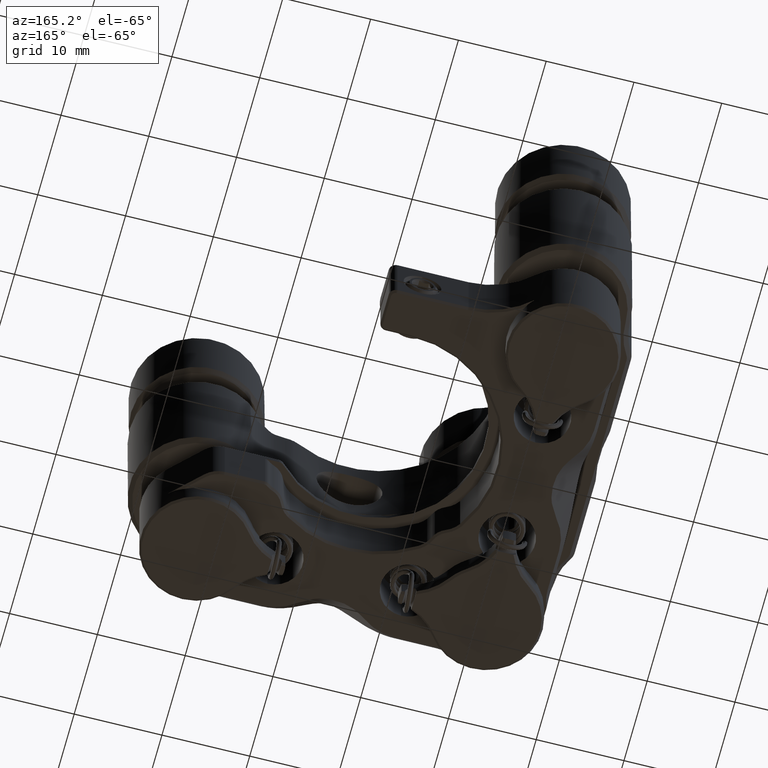
[diagram: clean part render]
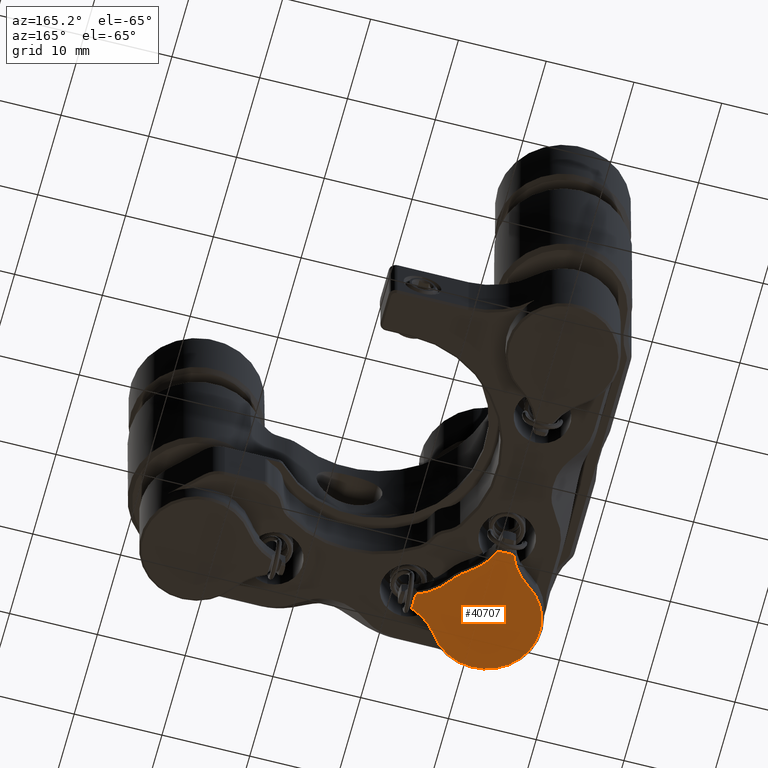
[diagram: same view with one face highlighted and labeled with its STEP entity id]
A machine part, auxiliary view. The second image highlights one B-rep face of the part: STEP entity #40707.
In plain terms, the highlighted planar face has unit normal (0, 0, -1).
Its self-contained STEP definition (entity closure, byte-faithful):
#552 = AXIS2_PLACEMENT_3D ( 'NONE', #8954, #37768, #13175 ) ;
#764 = VECTOR ( 'NONE', #37390, 1000.000000000000000 ) ;
#1606 = LINE ( 'NONE', #6130, #8469 ) ;
#2354 = VECTOR ( 'NONE', #12944, 1000.000000000000000 ) ;
#3702 = AXIS2_PLACEMENT_3D ( 'NONE', #10151, #24070, #10465 ) ;
#3902 = ORIENTED_EDGE ( 'NONE', *, *, #4543, .T. ) ;
#4543 = EDGE_CURVE ( 'NONE', #33838, #26601, #46786, .T. ) ;
#4590 = CARTESIAN_POINT ( 'NONE',  ( 16.06115914459125449, 22.72973785281512349, 12.97670909684711660 ) ) ;
#4619 = FACE_OUTER_BOUND ( 'NONE', #17947, .T. ) ;
#6130 = CARTESIAN_POINT ( 'NONE',  ( 17.15425173361347788, 24.04186663779271882, 12.97670909685329654 ) ) ;
#7084 = CIRCLE ( 'NONE', #52574, 6.731000000031926334 ) ;
#7771 = CARTESIAN_POINT ( 'NONE',  ( 46.59922866646579109, 20.40719739724860915, 12.97670909685329654 ) ) ;
#8469 = VECTOR ( 'NONE', #35903, 1000.000000000000000 ) ;
#8862 = VECTOR ( 'NONE', #31486, 1000.000000000000000 ) ;
#8954 = CARTESIAN_POINT ( 'NONE',  ( 8.861151733613258585, 12.11409739724832768, 12.97670909690396002 ) ) ;
#9783 = DIRECTION ( 'NONE',  ( 0.000000000000000000, 1.000000000000000000, 2.775557561562890118E-17 ) ) ;
#10044 = VERTEX_POINT ( 'NONE', #58494 ) ;
#10151 = CARTESIAN_POINT ( 'NONE',  ( 1.661144322635577764, 22.72973785281526915, 12.97670909665951200 ) ) ;
#10465 = DIRECTION ( 'NONE',  ( -3.543670746474352749E-15, 1.000000000000000000, 2.577215088344983916E-16 ) ) ;
#12395 = ORIENTED_EDGE ( 'NONE', *, *, #41783, .T. ) ;
#12944 = DIRECTION ( 'NONE',  ( 1.000000000000000000, -1.702056126997398298E-37, 6.132303471447325083E-21 ) ) ;
#13175 = DIRECTION ( 'NONE',  ( 1.000000000000000000, 0.000000000000000000, 0.000000000000000000 ) ) ;
#14642 = ORIENTED_EDGE ( 'NONE', *, *, #33657, .T. ) ;
#14760 = CARTESIAN_POINT ( 'NONE',  ( 8.861151733613265691, 12.11409739724927626, 12.97670909684711660 ) ) ;
#15012 = CIRCLE ( 'NONE', #552, 6.096000000102788086 ) ;
#15595 = EDGE_CURVE ( 'NONE', #44009, #56830, #16700, .T. ) ;
#15836 = DIRECTION ( 'NONE',  ( -2.656815044701648862E-30, -2.577215088376234641E-16, 1.000000000000000000 ) ) ;
#16700 = CIRCLE ( 'NONE', #48762, 6.096000000046894129 ) ;
#17947 = EDGE_LOOP ( 'NONE', ( #12395, #28659, #18664, #26276, #18446, #40909, #3902, #40189, #14642, #47257 ) ) ;
#18446 = ORIENTED_EDGE ( 'NONE', *, *, #61353, .F. ) ;
#18664 = ORIENTED_EDGE ( 'NONE', *, *, #51000, .T. ) ;
#18723 = CARTESIAN_POINT ( 'NONE',  ( 9.743551461935815894, 20.40719739724861626, 12.97670909684214635 ) ) ;
#20553 = CARTESIAN_POINT ( 'NONE',  ( 13.90620858373394242, 8.692311696991126269, 12.97670909681869489 ) ) ;
#20981 = AXIS2_PLACEMENT_3D ( 'NONE', #4590, #43734, #54398 ) ;
#21555 = EDGE_CURVE ( 'NONE', #21809, #57746, #7084, .T. ) ;
#21809 = VERTEX_POINT ( 'NONE', #36135 ) ;
#22112 = VERTEX_POINT ( 'NONE', #38509 ) ;
#24070 = DIRECTION ( 'NONE',  ( -2.656815044785316190E-30, -2.577215088416814632E-16, 1.000000000000000000 ) ) ;
#24348 = DIRECTION ( 'NONE',  ( 6.132303471447325083E-21, 2.775557561562890118E-17, -1.000000000000000000 ) ) ;
#26276 = ORIENTED_EDGE ( 'NONE', *, *, #21555, .T. ) ;
#26425 = CARTESIAN_POINT ( 'NONE',  ( 19.47679218917987143, 4.914089986270612442, 12.97670909679027318 ) ) ;
#26601 = VERTEX_POINT ( 'NONE', #58220 ) ;
#27509 = CARTESIAN_POINT ( 'NONE',  ( 7.978752005314903251, 20.40719739724860560, 12.97670909670583939 ) ) ;
#28659 = ORIENTED_EDGE ( 'NONE', *, *, #63785, .T. ) ;
#29326 = DIRECTION ( 'NONE',  ( 1.000000000000000000, 6.260484985432443497E-15, 0.000000000000000000 ) ) ;
#30656 = VERTEX_POINT ( 'NONE', #18723 ) ;
#30731 = DIRECTION ( 'NONE',  ( -1.546329052984999767E-15, 1.000000000000000000, 2.577215088308332945E-16 ) ) ;
#31486 = DIRECTION ( 'NONE',  ( -0.000000000000000000, -1.000000000000000000, -2.775557561562890118E-17 ) ) ;
#31775 = CIRCLE ( 'NONE', #53463, 6.731000000141502682 ) ;
#33657 = EDGE_CURVE ( 'NONE', #30656, #44009, #46779, .T. ) ;
#33838 = VERTEX_POINT ( 'NONE', #27509 ) ;
#34030 = EDGE_CURVE ( 'NONE', #26601, #30656, #61806, .T. ) ;
#35138 = DIRECTION ( 'NONE',  ( 0.000000000000000000, -0.000000000000000000, -1.000000000000000000 ) ) ;
#35903 = DIRECTION ( 'NONE',  ( -0.000000000000000000, -1.000000000000000000, -2.775557561562890118E-17 ) ) ;
#36135 = CARTESIAN_POINT ( 'NONE',  ( 17.15425173361346367, 11.23169766896460509, 12.97670909680906703 ) ) ;
#37390 = DIRECTION ( 'NONE',  ( 1.000000000000000000, -1.702056126997398298E-37, 6.132303471447325083E-21 ) ) ;
#37768 = DIRECTION ( 'NONE',  ( -0.000000000000000000, 0.000000000000000000, 1.000000000000000000 ) ) ;
#38509 = CARTESIAN_POINT ( 'NONE',  ( 17.15425173361349920, 12.99649712545386926, 12.97670909678133988 ) ) ;
#40189 = ORIENTED_EDGE ( 'NONE', *, *, #34030, .T. ) ;
#40206 = VERTEX_POINT ( 'NONE', #40580 ) ;
#40580 = CARTESIAN_POINT ( 'NONE',  ( 17.15425173361347433, 12.11409739724871137, 12.97670909685329121 ) ) ;
#40707 = ADVANCED_FACE ( 'NONE', ( #4619 ), #44080, .T. ) ;
#40909 = ORIENTED_EDGE ( 'NONE', *, *, #63325, .T. ) ;
#41203 = CARTESIAN_POINT ( 'NONE',  ( 17.15425173361349209, 24.04186663779271882, 12.97670909685329654 ) ) ;
#41783 = EDGE_CURVE ( 'NONE', #56830, #22112, #31775, .T. ) ;
#43369 = CARTESIAN_POINT ( 'NONE',  ( 19.47679218918002420, 19.31410480822628273, 12.97670909672661743 ) ) ;
#43734 = DIRECTION ( 'NONE',  ( -2.723235420812840975E-30, -2.577215088373230067E-16, 1.000000000000000000 ) ) ;
#44009 = VERTEX_POINT ( 'NONE', #59615 ) ;
#44080 = PLANE ( 'NONE',  #48750 ) ;
#46779 = CIRCLE ( 'NONE', #20981, 6.730999999972009817 ) ;
#46786 = LINE ( 'NONE', #62298, #764 ) ;
#47257 = ORIENTED_EDGE ( 'NONE', *, *, #15595, .T. ) ;
#48750 = AXIS2_PLACEMENT_3D ( 'NONE', #54107, #24348, #9783 ) ;
#48762 = AXIS2_PLACEMENT_3D ( 'NONE', #14760, #35138, #29326 ) ;
#50157 = CARTESIAN_POINT ( 'NONE',  ( 13.90620858370560065, 15.53588309750612417, 12.97670909678686613 ) ) ;
#51000 = EDGE_CURVE ( 'NONE', #40206, #21809, #1606, .T. ) ;
#51012 = DIRECTION ( 'NONE',  ( -0.000000000000000000, 0.000000000000000000, 1.000000000000000000 ) ) ;
#51535 = LINE ( 'NONE', #41203, #8862 ) ;
#52574 = AXIS2_PLACEMENT_3D ( 'NONE', #26425, #51012, #55543 ) ;
#53463 = AXIS2_PLACEMENT_3D ( 'NONE', #43369, #15836, #30731 ) ;
#54107 = CARTESIAN_POINT ( 'NONE',  ( 46.59922866646579109, 24.04186663779271882, 12.97670909685329654 ) ) ;
#54398 = DIRECTION ( 'NONE',  ( 0.000000000000000000, 1.000000000000000000, 2.577215088373229574E-16 ) ) ;
#55543 = DIRECTION ( 'NONE',  ( -1.000000000000000000, 7.087341492963292324E-15, 0.000000000000000000 ) ) ;
#56830 = VERTEX_POINT ( 'NONE', #50157 ) ;
#57746 = VERTEX_POINT ( 'NONE', #20553 ) ;
#58220 = CARTESIAN_POINT ( 'NONE',  ( 8.861151733613679582, 20.40719739724860915, 12.97670909685329477 ) ) ;
#58494 = CARTESIAN_POINT ( 'NONE',  ( 5.439366033299230629, 17.15915424736917672, 12.97670909675331252 ) ) ;
#59615 = CARTESIAN_POINT ( 'NONE',  ( 12.28293743387060388, 17.15915424739799988, 12.97670909684711660 ) ) ;
#61353 = EDGE_CURVE ( 'NONE', #10044, #57746, #15012, .T. ) ;
#61806 = LINE ( 'NONE', #7771, #2354 ) ;
#62298 = CARTESIAN_POINT ( 'NONE',  ( 46.59922866646579109, 20.40719739724860915, 12.97670909685329654 ) ) ;
#63325 = EDGE_CURVE ( 'NONE', #10044, #33838, #63593, .T. ) ;
#63593 = CIRCLE ( 'NONE', #3702, 6.731000000045780141 ) ;
#63785 = EDGE_CURVE ( 'NONE', #22112, #40206, #51535, .T. ) ;